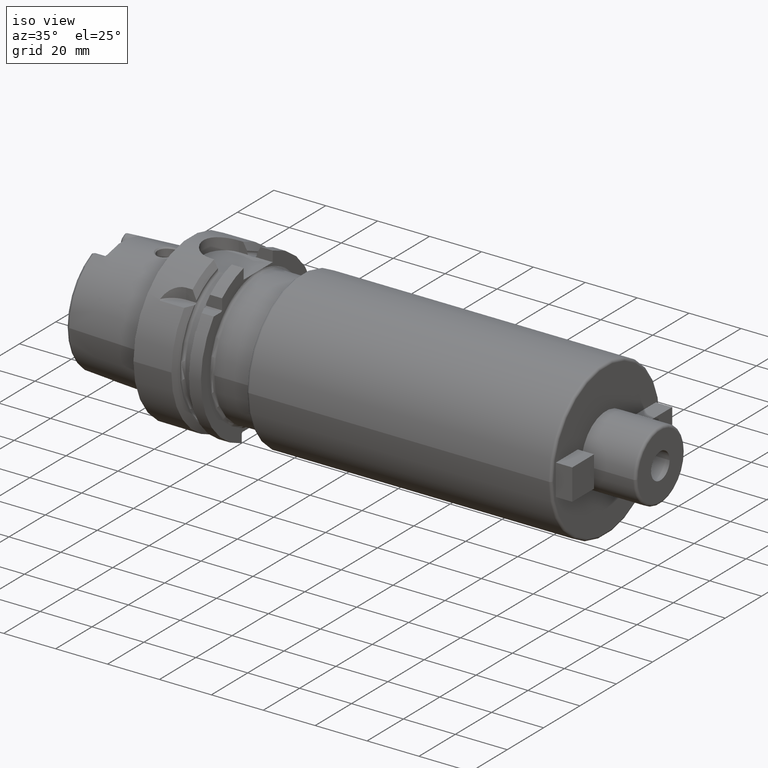
[diagram: clean part render]
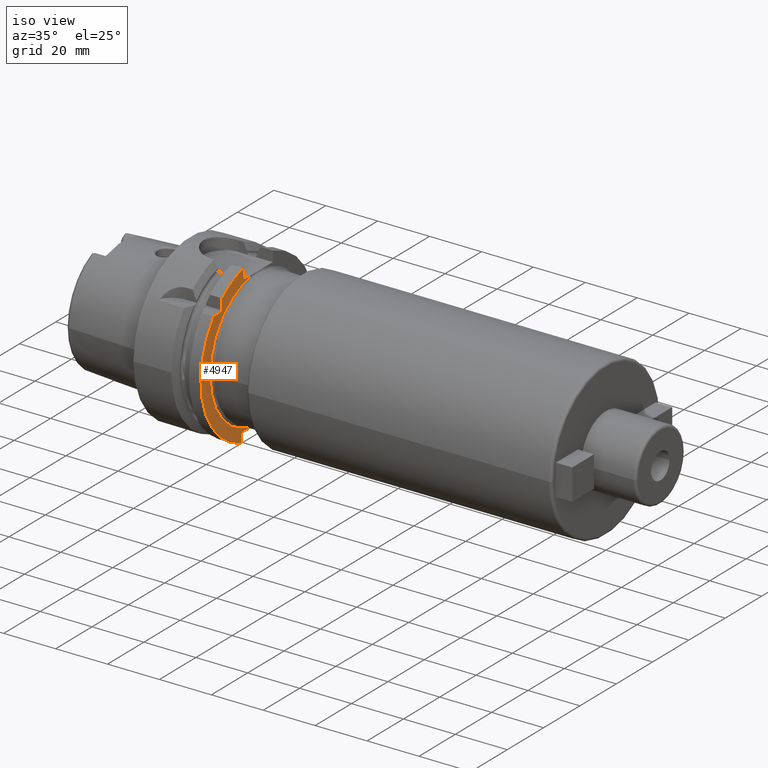
[diagram: same view with one face highlighted and labeled with its STEP entity id]
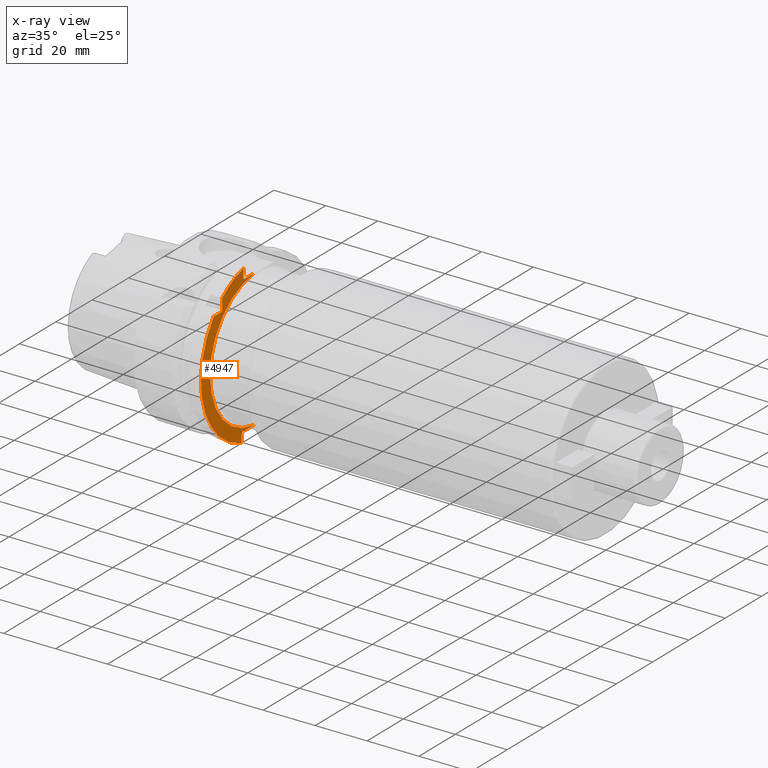
[diagram: x-ray of the same camera — body ghosted, the highlighted face saturated]
A machine part, iso view. The second image highlights one B-rep face of the part: STEP entity #4947.
The next image is the same camera in x-ray: the body ghosted, the highlighted face saturated — about 0% of this face is hidden behind the body in this view.
In plain terms, the highlighted planar face has unit normal (1, 0, 0).
Its self-contained STEP definition (entity closure, byte-faithful):
#1358=DIRECTION('',(0.E0,-9.999999999999E-1,-5.103945096065E-7));
#1359=VECTOR('',#1358,6.317478195631E0);
#1360=CARTESIAN_POINT('',(2.6E1,-2.300021804369E0,-2.639999677559E1));
#1361=LINE('',#1360,#1359);
#1405=DIRECTION('',(0.E0,0.E0,-1.E0));
#1406=VECTOR('',#1405,3.381694679888E0);
#1407=CARTESIAN_POINT('',(2.6E1,-9.0175E0,-2.68E1));
#1408=LINE('',#1407,#1406);
#1409=DIRECTION('',(0.E0,1.E0,0.E0));
#1410=VECTOR('',#1409,4.208689662367E0);
#1411=CARTESIAN_POINT('',(2.6E1,-2.445868966237E1,1.985E1));
#1412=LINE('',#1411,#1410);
#1413=DIRECTION('',(0.E0,0.E0,1.E0));
#1414=VECTOR('',#1413,4.208689662367E0);
#1415=CARTESIAN_POINT('',(2.6E1,-1.985E1,2.025E1));
#1416=LINE('',#1415,#1414);
#1417=DIRECTION('',(0.E0,0.E0,-1.E0));
#1418=VECTOR('',#1417,4.062594993697E0);
#1419=CARTESIAN_POINT('',(2.6E1,-8.0175E0,3.046259499370E1));
#1420=LINE('',#1419,#1418);
#1438=CARTESIAN_POINT('',(2.6E1,0.E0,0.E0));
#1439=DIRECTION('',(-1.E0,0.E0,0.E0));
#1440=DIRECTION('',(0.E0,-8.679074444127E-2,-9.962265639298E-1));
#1441=AXIS2_PLACEMENT_3D('',#1438,#1439,#1440);
#1524=DIRECTION('',(0.E0,9.999999999998E-1,-5.544807214543E-7));
#1525=VECTOR('',#1524,5.717478482157E0);
#1526=CARTESIAN_POINT('',(2.6E1,-8.0175E0,2.64E1));
#1527=LINE('',#1526,#1525);
#1655=CARTESIAN_POINT('',(2.6E1,0.E0,0.E0));
#1656=DIRECTION('',(1.E0,0.E0,0.E0));
#1657=DIRECTION('',(0.E0,-7.764663384879E-1,6.301587301587E-1));
#1658=AXIS2_PLACEMENT_3D('',#1655,#1656,#1657);
#1664=CARTESIAN_POINT('',(2.6E1,0.E0,0.E0));
#1665=DIRECTION('',(1.E0,0.E0,0.E0));
#1666=DIRECTION('',(0.E0,-2.545238095238E-1,9.670665077364E-1));
#1667=AXIS2_PLACEMENT_3D('',#1664,#1665,#1666);
#2012=DIRECTION('',(0.E0,-7.071067811865E-1,-7.071067811865E-1));
#2013=VECTOR('',#2012,5.656854249492E-1);
#2014=CARTESIAN_POINT('',(2.6E1,-1.985E1,2.025E1));
#2015=LINE('',#2014,#2013);
#2056=DIRECTION('',(0.E0,-7.071067811865E-1,-7.071067811866E-1));
#2057=VECTOR('',#2056,5.656854249492E-1);
#2058=CARTESIAN_POINT('',(2.6E1,-8.6175E0,-2.64E1));
#2059=LINE('',#2058,#2057);
#3249=CARTESIAN_POINT('',(2.6E1,-2.445868966237E1,1.985E1));
#3251=VERTEX_POINT('',#3249);
#3253=CARTESIAN_POINT('',(2.6E1,-1.985E1,2.445868966237E1));
#3255=VERTEX_POINT('',#3253);
#3273=CARTESIAN_POINT('',(2.6E1,-8.0175E0,3.046259499370E1));
#3274=VERTEX_POINT('',#3273);
#3275=CARTESIAN_POINT('',(2.6E1,-9.0175E0,-3.018169467989E1));
#3276=VERTEX_POINT('',#3275);
#3339=CARTESIAN_POINT('',(2.6E1,-8.6175E0,-2.64E1));
#3340=CARTESIAN_POINT('',(2.6E1,-9.0175E0,-2.68E1));
#3341=VERTEX_POINT('',#3339);
#3342=VERTEX_POINT('',#3340);
#3347=CARTESIAN_POINT('',(2.6E1,-8.0175E0,2.64E1));
#3348=VERTEX_POINT('',#3347);
#3371=CARTESIAN_POINT('',(2.6E1,-2.300021517844E0,2.639999682977E1));
#3372=VERTEX_POINT('',#3371);
#3373=CARTESIAN_POINT('',(2.6E1,-2.300021804369E0,-2.639999677559E1));
#3374=VERTEX_POINT('',#3373);
#3384=CARTESIAN_POINT('',(2.6E1,-1.985E1,2.025E1));
#3385=CARTESIAN_POINT('',(2.6E1,-2.025E1,1.985E1));
#3386=VERTEX_POINT('',#3384);
#3387=VERTEX_POINT('',#3385);
#4919=CARTESIAN_POINT('',(2.6E1,0.E0,0.E0));
#4920=DIRECTION('',(1.E0,0.E0,0.E0));
#4921=DIRECTION('',(0.E0,-1.E0,0.E0));
#4922=AXIS2_PLACEMENT_3D('',#4919,#4920,#4921);
#4923=PLANE('',#4922);
#4925=ORIENTED_EDGE('',*,*,#4924,.F.);
#4926=ORIENTED_EDGE('',*,*,#4871,.T.);
#4928=ORIENTED_EDGE('',*,*,#4927,.T.);
#4930=ORIENTED_EDGE('',*,*,#4929,.T.);
#4932=ORIENTED_EDGE('',*,*,#4931,.F.);
#4934=ORIENTED_EDGE('',*,*,#4933,.T.);
#4936=ORIENTED_EDGE('',*,*,#4935,.F.);
#4938=ORIENTED_EDGE('',*,*,#4937,.T.);
#4940=ORIENTED_EDGE('',*,*,#4939,.F.);
#4942=ORIENTED_EDGE('',*,*,#4941,.T.);
#4944=ORIENTED_EDGE('',*,*,#4943,.T.);
#4945=EDGE_LOOP('',(#4925,#4926,#4928,#4930,#4932,#4934,#4936,#4938,#4940,#4942,
#4944));
#4946=FACE_OUTER_BOUND('',#4945,.F.);
#4947=ADVANCED_FACE('',(#4946),#4923,.T.);
#1442=CIRCLE('',#1441,2.65E1);
#1659=CIRCLE('',#1658,3.15E1);
#1668=CIRCLE('',#1667,3.15E1);
#4871=EDGE_CURVE('',#3374,#3341,#1361,.T.);
#4924=EDGE_CURVE('',#3374,#3372,#1442,.T.);
#4927=EDGE_CURVE('',#3341,#3342,#2059,.T.);
#4929=EDGE_CURVE('',#3342,#3276,#1408,.T.);
#4931=EDGE_CURVE('',#3251,#3276,#1659,.T.);
#4933=EDGE_CURVE('',#3251,#3387,#1412,.T.);
#4935=EDGE_CURVE('',#3386,#3387,#2015,.T.);
#4937=EDGE_CURVE('',#3386,#3255,#1416,.T.);
#4939=EDGE_CURVE('',#3274,#3255,#1668,.T.);
#4941=EDGE_CURVE('',#3274,#3348,#1420,.T.);
#4943=EDGE_CURVE('',#3348,#3372,#1527,.T.);